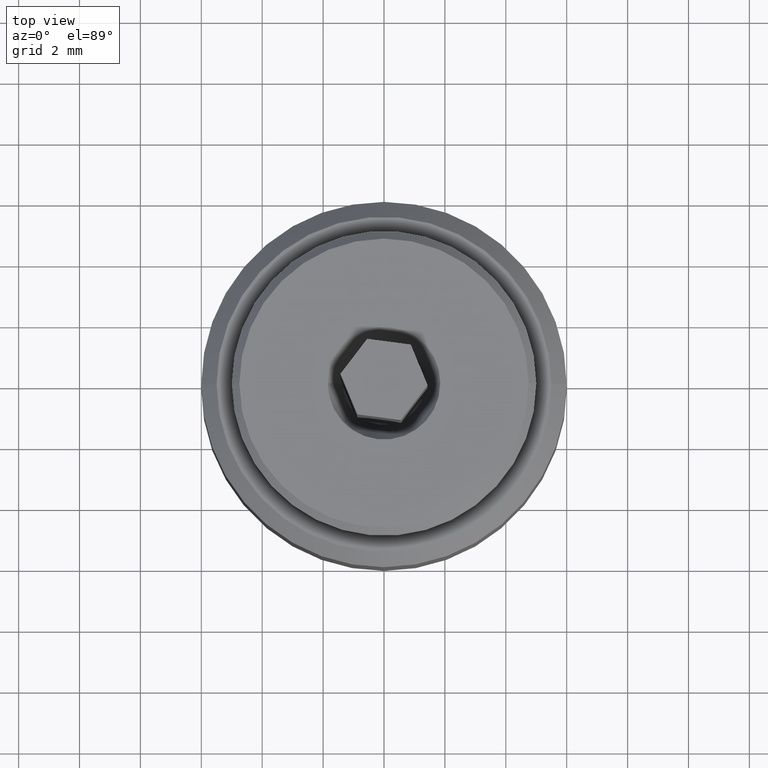
[diagram: clean part render]
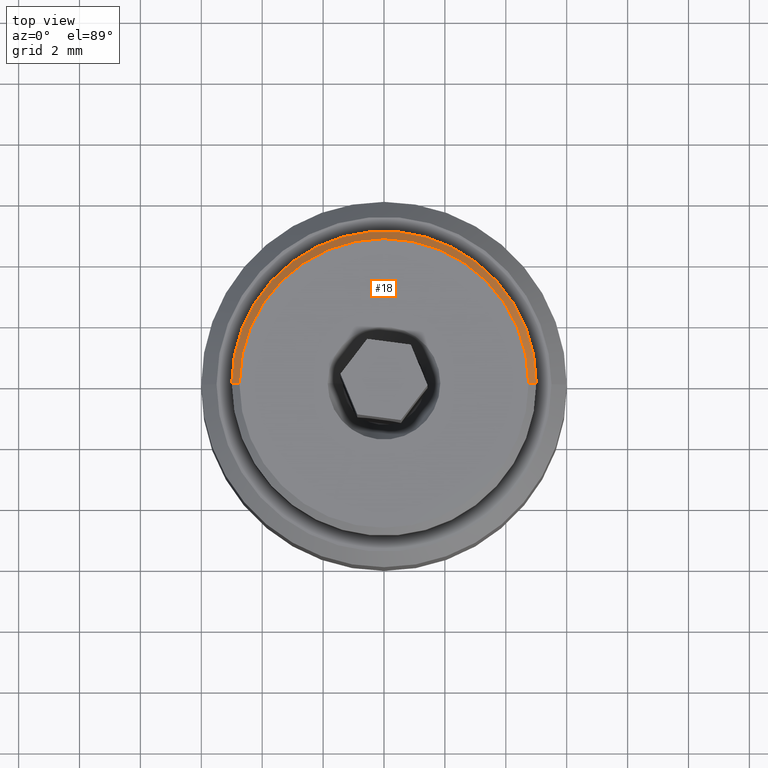
[diagram: same view with one face highlighted and labeled with its STEP entity id]
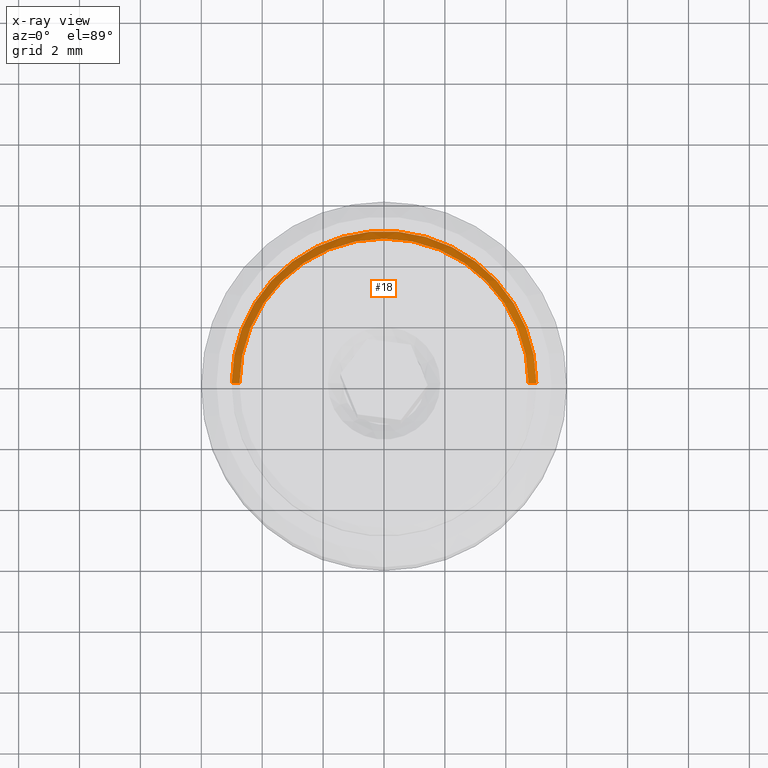
[diagram: x-ray of the same camera — body ghosted, the highlighted face saturated]
A machine part, top view. The second image highlights one B-rep face of the part: STEP entity #18.
The next image is the same camera in x-ray: the body ghosted, the highlighted face saturated — about 0% of this face is hidden behind the body in this view.
In plain terms, the highlighted conical surface has half-angle 45 deg.
Its self-contained STEP definition (entity closure, byte-faithful):
#2 = VECTOR ( 'NONE', #793, 1000.000000000000114 ) ;
#18 = ADVANCED_FACE ( 'NONE', ( #469 ), #597, .T. ) ;
#79 = DIRECTION ( 'NONE',  ( 0.000000000000000000, 0.000000000000000000, -1.000000000000000000 ) ) ;
#102 = CARTESIAN_POINT ( 'NONE',  ( -4.750000000000005329, 0.000000000000000000, 10.00000000000000178 ) ) ;
#108 = DIRECTION ( 'NONE',  ( 1.000000000000000000, 0.000000000000000000, 0.000000000000000000 ) ) ;
#120 = DIRECTION ( 'NONE',  ( 0.000000000000000000, 0.000000000000000000, 1.000000000000000000 ) ) ;
#131 = CARTESIAN_POINT ( 'NONE',  ( 4.750000000000007105, 5.970153145843351291E-16, 10.00000000000000000 ) ) ;
#151 = CARTESIAN_POINT ( 'NONE',  ( -5.000000000000000000, 6.123233995736765296E-16, 9.750000000000005329 ) ) ;
#223 = EDGE_CURVE ( 'NONE', #816, #499, #596, .T. ) ;
#232 = CIRCLE ( 'NONE', #506, 5.000000000000000000 ) ;
#280 = CARTESIAN_POINT ( 'NONE',  ( -4.750000000000007105, 0.000000000000000000, 10.00000000000000000 ) ) ;
#308 = CARTESIAN_POINT ( 'NONE',  ( 0.000000000000000000, 0.000000000000000000, 10.00000000000000178 ) ) ;
#365 = EDGE_LOOP ( 'NONE', ( #928, #956, #912, #494 ) ) ;
#406 = DIRECTION ( 'NONE',  ( 0.000000000000000000, 0.000000000000000000, -1.000000000000000000 ) ) ;
#439 = CARTESIAN_POINT ( 'NONE',  ( 5.000000000000000000, 0.000000000000000000, 9.750000000000005329 ) ) ;
#469 = FACE_OUTER_BOUND ( 'NONE', #365, .T. ) ;
#471 = LINE ( 'NONE', #102, #614 ) ;
#474 = DIRECTION ( 'NONE',  ( -0.7071067811865451302, 0.000000000000000000, -0.7071067811865500152 ) ) ;
#487 = CARTESIAN_POINT ( 'NONE',  ( 0.000000000000000000, 0.000000000000000000, 10.00000000000000000 ) ) ;
#490 = CARTESIAN_POINT ( 'NONE',  ( 4.750000000000005329, 5.817072295949934328E-16, 10.00000000000000178 ) ) ;
#494 = ORIENTED_EDGE ( 'NONE', *, *, #712, .F. ) ;
#499 = VERTEX_POINT ( 'NONE', #280 ) ;
#506 = AXIS2_PLACEMENT_3D ( 'NONE', #778, #406, #108 ) ;
#563 = DIRECTION ( 'NONE',  ( 1.000000000000000000, 0.000000000000000000, 0.000000000000000000 ) ) ;
#596 = CIRCLE ( 'NONE', #870, 4.750000000000007105 ) ;
#597 = CONICAL_SURFACE ( 'NONE', #772, 4.750000000000005329, 0.7853981633974447263 ) ;
#614 = VECTOR ( 'NONE', #474, 1000.000000000000114 ) ;
#669 = EDGE_CURVE ( 'NONE', #951, #878, #232, .T. ) ;
#712 = EDGE_CURVE ( 'NONE', #499, #951, #471, .T. ) ;
#772 = AXIS2_PLACEMENT_3D ( 'NONE', #308, #79, #926 ) ;
#778 = CARTESIAN_POINT ( 'NONE',  ( 0.000000000000000000, 0.000000000000000000, 9.750000000000005329 ) ) ;
#793 = DIRECTION ( 'NONE',  ( 0.7071067811865451302, 8.659560562354904508E-17, -0.7071067811865500152 ) ) ;
#799 = LINE ( 'NONE', #490, #2 ) ;
#816 = VERTEX_POINT ( 'NONE', #131 ) ;
#870 = AXIS2_PLACEMENT_3D ( 'NONE', #487, #120, #563 ) ;
#878 = VERTEX_POINT ( 'NONE', #439 ) ;
#912 = ORIENTED_EDGE ( 'NONE', *, *, #669, .F. ) ;
#914 = EDGE_CURVE ( 'NONE', #816, #878, #799, .T. ) ;
#926 = DIRECTION ( 'NONE',  ( -1.000000000000000000, 0.000000000000000000, 0.000000000000000000 ) ) ;
#928 = ORIENTED_EDGE ( 'NONE', *, *, #223, .F. ) ;
#951 = VERTEX_POINT ( 'NONE', #151 ) ;
#956 = ORIENTED_EDGE ( 'NONE', *, *, #914, .T. ) ;